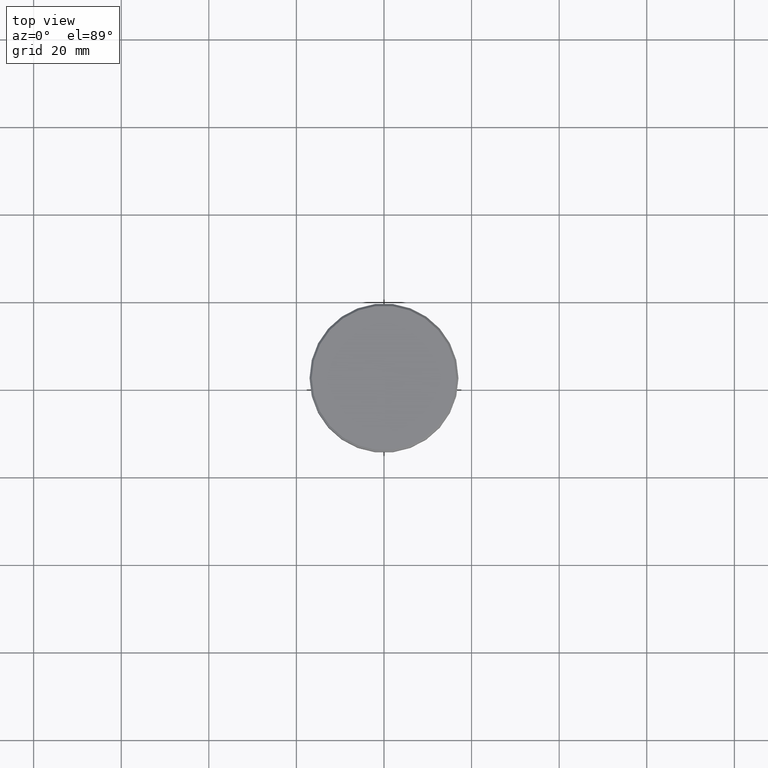
[diagram: clean part render]
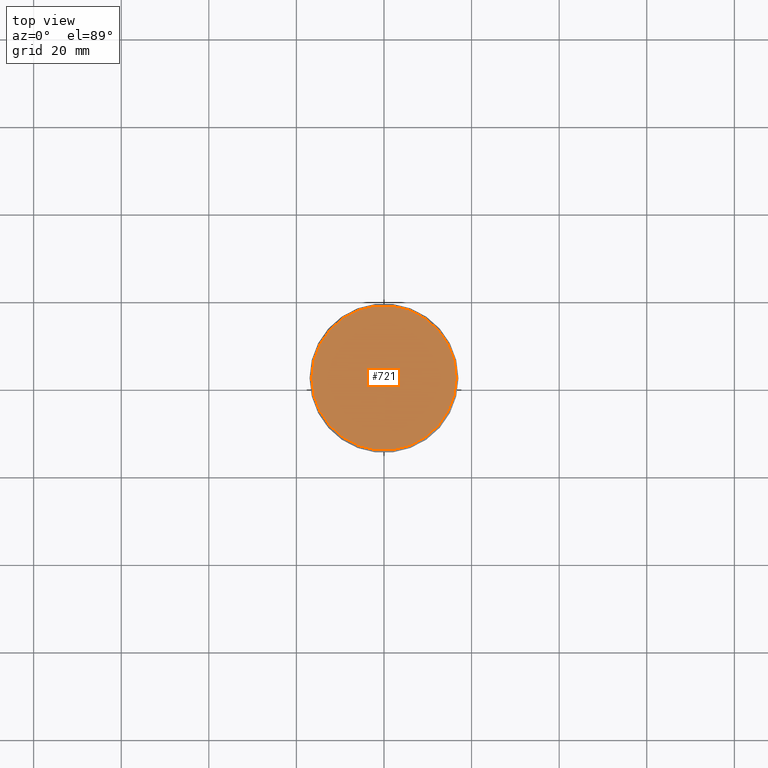
[diagram: same view with one face highlighted and labeled with its STEP entity id]
A machine part, top view. The second image highlights one B-rep face of the part: STEP entity #721.
In plain terms, the highlighted planar face has unit normal (0, -0, 1).
Its self-contained STEP definition (entity closure, byte-faithful):
#21 = ORIENTED_EDGE ( 'NONE', *, *, #52, .T. ) ;
#52 = EDGE_CURVE ( 'NONE', #1007, #228, #1042, .T. ) ;
#73 = EDGE_LOOP ( 'NONE', ( #88, #21 ) ) ;
#88 = ORIENTED_EDGE ( 'NONE', *, *, #1000, .T. ) ;
#104 = AXIS2_PLACEMENT_3D ( 'NONE', #1153, #704, #1068 ) ;
#207 = PLANE ( 'NONE',  #389 ) ;
#228 = VERTEX_POINT ( 'NONE', #379 ) ;
#321 = DIRECTION ( 'NONE',  ( -0.000000000000000000, -0.000000000000000000, 1.000000000000000000 ) ) ;
#379 = CARTESIAN_POINT ( 'NONE',  ( -16.50000000000000000, 0.000000000000000000, 0.000000000000000000 ) ) ;
#389 = AXIS2_PLACEMENT_3D ( 'NONE', #399, #1136, #745 ) ;
#399 = CARTESIAN_POINT ( 'NONE',  ( 0.000000000000000000, 0.000000000000000000, 0.000000000000000000 ) ) ;
#404 = FACE_OUTER_BOUND ( 'NONE', #73, .T. ) ;
#418 = DIRECTION ( 'NONE',  ( 1.000000000000000000, 0.000000000000000000, 0.000000000000000000 ) ) ;
#503 = CIRCLE ( 'NONE', #104, 16.50000000000000000 ) ;
#704 = DIRECTION ( 'NONE',  ( -0.000000000000000000, -0.000000000000000000, 1.000000000000000000 ) ) ;
#721 = ADVANCED_FACE ( 'NONE', ( #404 ), #207, .T. ) ;
#745 = DIRECTION ( 'NONE',  ( 1.000000000000000000, 0.000000000000000000, 0.000000000000000000 ) ) ;
#1000 = EDGE_CURVE ( 'NONE', #228, #1007, #503, .T. ) ;
#1007 = VERTEX_POINT ( 'NONE', #1021 ) ;
#1021 = CARTESIAN_POINT ( 'NONE',  ( 16.50000000000000000, 2.051283388571816887E-15, 0.000000000000000000 ) ) ;
#1042 = CIRCLE ( 'NONE', #1058, 16.50000000000000000 ) ;
#1058 = AXIS2_PLACEMENT_3D ( 'NONE', #1142, #321, #418 ) ;
#1068 = DIRECTION ( 'NONE',  ( 1.000000000000000000, 0.000000000000000000, 0.000000000000000000 ) ) ;
#1136 = DIRECTION ( 'NONE',  ( 0.000000000000000000, -0.000000000000000000, 1.000000000000000000 ) ) ;
#1142 = CARTESIAN_POINT ( 'NONE',  ( 0.000000000000000000, 0.000000000000000000, 0.000000000000000000 ) ) ;
#1153 = CARTESIAN_POINT ( 'NONE',  ( 0.000000000000000000, 0.000000000000000000, 0.000000000000000000 ) ) ;